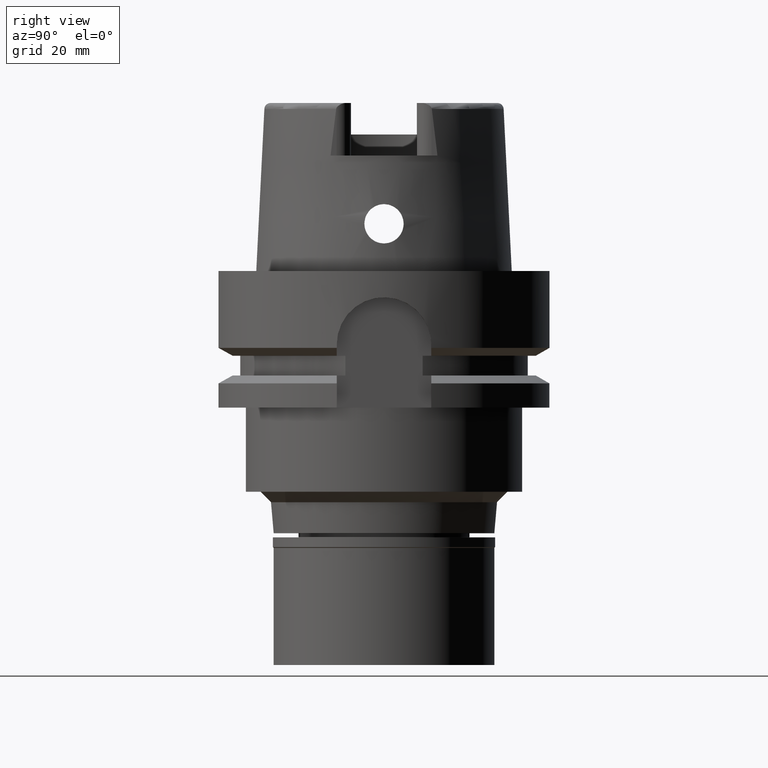
[diagram: clean part render]
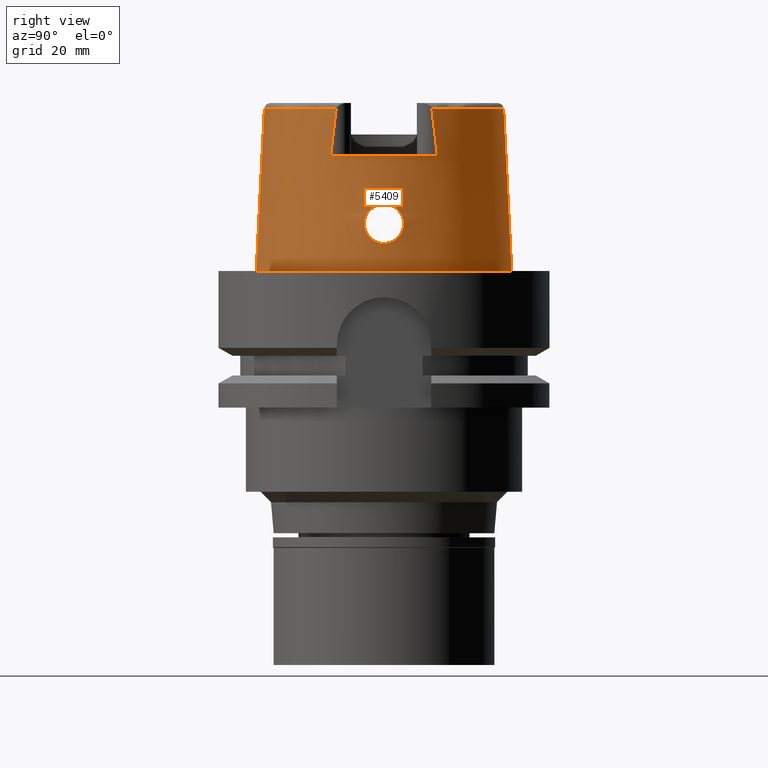
[diagram: same view with one face highlighted and labeled with its STEP entity id]
A machine part, right view. The second image highlights one B-rep face of the part: STEP entity #5409.
In plain terms, the highlighted conical surface has half-angle 2.862 deg.
Its self-contained STEP definition (entity closure, byte-faithful):
#14 = CARTESIAN_POINT ( 'NONE',  ( 23.56097393706681942, 3.025902903375624398, 11.21904465688760055 ) ) ;
#26 = CARTESIAN_POINT ( 'NONE',  ( 0.0000000000000000000, 0.0000000000000000000, 15.42996356139999925 ) ) ;
#50 = CARTESIAN_POINT ( 'NONE',  ( 23.81211834265714344, -2.876056312718741736, 6.592809062521236108 ) ) ;
#55 = DIRECTION ( 'NONE',  ( 0.0000000000000000000, -1.000000000000000000, 0.0000000000000000000 ) ) ;
#89 = CARTESIAN_POINT ( 'NONE',  ( 20.86994457043000040, 9.110917567833000774, 30.85992712280000205 ) ) ;
#98 = CARTESIAN_POINT ( 'NONE',  ( 23.99359462196727222, -1.456942030871878790, 5.544588945069683916 ) ) ;
#153 = CARTESIAN_POINT ( 'NONE',  ( 23.97828965818710856, -1.633483127063273255, 5.624001667398398574 ) ) ;
#163 = VECTOR ( 'NONE', #2156, 1000.000000000000000 ) ;
#212 = CARTESIAN_POINT ( 'NONE',  ( 23.79650205318756306, 2.969677808356737003, 6.697468027124751977 ) ) ;
#259 = CIRCLE ( 'NONE', #3077, 22.77198729362000051 ) ;
#317 = CARTESIAN_POINT ( 'NONE',  ( 23.53938479611692003, 3.476903592890194794, 10.40488538782464722 ) ) ;
#324 = CARTESIAN_POINT ( 'NONE',  ( 23.54002231872675566, -3.451693529973535401, 10.46572735612521576 ) ) ;
#352 = CARTESIAN_POINT ( 'NONE',  ( 23.62270114085325545, -3.665220644505638781, 8.197813718694982654 ) ) ;
#378 = CARTESIAN_POINT ( 'NONE',  ( 23.58262423634680260, 2.671064998426308623, 11.63209362314380613 ) ) ;
#384 = CARTESIAN_POINT ( 'NONE',  ( 23.64857754833197134, -1.427316427500459284, 12.46775257891087385 ) ) ;
#397 = EDGE_CURVE ( 'NONE', #4652, #3040, #3911, .T. ) ;
#409 = CARTESIAN_POINT ( 'NONE',  ( 23.55704744127657335, 3.750791013392718476, 9.225457498516988153 ) ) ;
#437 = CARTESIAN_POINT ( 'NONE',  ( 23.58145121590735016, 2.689938629073251430, 11.61282818498785652 ) ) ;
#442 = CARTESIAN_POINT ( 'NONE',  ( 23.54081473573868877, -3.424914551224363279, 10.52766104074157916 ) ) ;
#487 = CARTESIAN_POINT ( 'NONE',  ( 23.67751368057999883, 0.0000000000000000000, 12.75000000000000000 ) ) ;
#526 = CARTESIAN_POINT ( 'NONE',  ( 23.67875158223074550, -3.486570966158092144, 7.619279047603755295 ) ) ;
#545 = CARTESIAN_POINT ( 'NONE',  ( 20.87000000000000099, 9.459419187967647247, 28.07088142031913591 ) ) ;
#571 = ORIENTED_EDGE ( 'NONE', *, *, #3291, .F. ) ;
#587 = CARTESIAN_POINT ( 'NONE',  ( 23.72481455431118036, -3.304267991617185096, 7.225716315783373922 ) ) ;
#603 = CARTESIAN_POINT ( 'NONE',  ( 0.0000000000000000000, 0.0000000000000000000, -1.705302565823999926E-12 ) ) ;
#719 = CARTESIAN_POINT ( 'NONE',  ( 23.60613829532960395, 3.704475566804039666, 8.404539046098985722 ) ) ;
#730 = CARTESIAN_POINT ( 'NONE',  ( 20.87000000000000099, 10.16755860605000095, 22.00000000000000000 ) ) ;
#752 = CARTESIAN_POINT ( 'NONE',  ( 23.67751368058000239, -0.2261849445765579947, 12.75000000000000178 ) ) ;
#771 = EDGE_CURVE ( 'NONE', #4652, #1302, #4626, .T. ) ;
#775 = CARTESIAN_POINT ( 'NONE',  ( 23.57105491432628241, 2.858561901069452293, 11.42815467637543669 ) ) ;
#781 = CARTESIAN_POINT ( 'NONE',  ( 23.54216994027410337, -3.385217124010664325, 10.61496946164797883 ) ) ;
#806 = CARTESIAN_POINT ( 'NONE',  ( 23.62963982617640113, -1.849420927018827765, 12.26292078322306267 ) ) ;
#830 = CARTESIAN_POINT ( 'NONE',  ( 23.61537334687070455, 2.120206967978428114, 12.09310867072318807 ) ) ;
#846 = CARTESIAN_POINT ( 'NONE',  ( 20.87000000000000099, -9.811228181990475861, 25.12030646021867142 ) ) ;
#859 = CARTESIAN_POINT ( 'NONE',  ( 23.58213384584901817, 2.678952664373675407, 11.62407088645715447 ) ) ;
#864 = DIRECTION ( 'NONE',  ( 0.8989877876694615244, 0.4379736951246811505, 0.0000000000000000000 ) ) ;
#866 = CARTESIAN_POINT ( 'NONE',  ( 23.54860000739594739, -3.719469379752473159, 9.492452906602904861 ) ) ;
#870 = FACE_BOUND ( 'NONE', #3980, .T. ) ;
#895 = CARTESIAN_POINT ( 'NONE',  ( 23.84423449510489590, -2.690739985143590474, 6.388012785391639525 ) ) ;
#912 = AXIS2_PLACEMENT_3D ( 'NONE', #3039, #3826, #864 ) ;
#925 = CARTESIAN_POINT ( 'NONE',  ( 23.84677590770212774, -2.675526315981651138, 6.372427285870736924 ) ) ;
#932 = CARTESIAN_POINT ( 'NONE',  ( 20.87000527243999670, -9.110771420352000050, 30.85992623711999983 ) ) ;
#957 = CARTESIAN_POINT ( 'NONE',  ( 23.98509007005912608, -1.557381856860421632, 5.588571454807489403 ) ) ;
#959 = EDGE_CURVE ( 'NONE', #2384, #3885, #3646, .T. ) ;
#982 = CARTESIAN_POINT ( 'NONE',  ( 23.83528976135455935, -2.743773146917467098, 6.443467665228063801 ) ) ;
#1053 = CARTESIAN_POINT ( 'NONE',  ( 20.87000527243999670, -9.110771420352000050, 30.85992623711999983 ) ) ;
#1071 = CARTESIAN_POINT ( 'NONE',  ( 23.87287849170502696, 2.508908530147664795, 6.212686178633938461 ) ) ;
#1099 = CARTESIAN_POINT ( 'NONE',  ( 23.96281411356789803, 1.801536887985862867, 5.701936245124145763 ) ) ;
#1123 = ORIENTED_EDGE ( 'NONE', *, *, #959, .T. ) ;
#1130 = CARTESIAN_POINT ( 'NONE',  ( 23.99892183081600550, 1.390467575579733550, 5.517305325429570750 ) ) ;
#1153 = CARTESIAN_POINT ( 'NONE',  ( 23.82482953088663180, 2.812690198206222458, 6.507944060991925461 ) ) ;
#1179 = CARTESIAN_POINT ( 'NONE',  ( 23.88455075029623131, 2.429719352462580417, 6.142741650817558074 ) ) ;
#1223 = CARTESIAN_POINT ( 'NONE',  ( 23.65043793898882285, -1.379778864511815861, 12.48700197861594319 ) ) ;
#1230 = ORIENTED_EDGE ( 'NONE', *, *, #1947, .F. ) ;
#1250 = CARTESIAN_POINT ( 'NONE',  ( 23.57527764373855206, 2.789748443729621386, 11.50619361569903276 ) ) ;
#1256 = CARTESIAN_POINT ( 'NONE',  ( 23.65928277619455855, -1.127728027548423162, 12.57697906851297631 ) ) ;
#1276 = CARTESIAN_POINT ( 'NONE',  ( 23.54134771584749686, 3.395144912288543093, 10.60487850107475616 ) ) ;
#1284 = CARTESIAN_POINT ( 'NONE',  ( 23.64954775811062149, -1.402666035859550853, 12.47780041882622548 ) ) ;
#1302 = VERTEX_POINT ( 'NONE', #5264 ) ;
#1310 = CARTESIAN_POINT ( 'NONE',  ( 23.67751368057999528, 0.4549788484589344928, 12.74999999999999822 ) ) ;
#1321 = CARTESIAN_POINT ( 'NONE',  ( 23.58654186357497551, -2.609417199078821081, 11.69326521436242672 ) ) ;
#1347 = CARTESIAN_POINT ( 'NONE',  ( 23.64626530331659282, 1.484461710981089588, 12.44371459803452673 ) ) ;
#1352 = CARTESIAN_POINT ( 'NONE',  ( 23.62294777282069802, -1.980060669432733178, 12.18496609078765935 ) ) ;
#1403 = CARTESIAN_POINT ( 'NONE',  ( 23.67626437514265447, -3.495606887178084321, 7.642169836985746478 ) ) ;
#1411 = CARTESIAN_POINT ( 'NONE',  ( 20.87000000000000099, -10.16755860605000095, 22.00000000000000000 ) ) ;
#1434 = CARTESIAN_POINT ( 'NONE',  ( 23.99460956838357717, -1.444482579142679857, 5.539361949234068661 ) ) ;
#1457 = CARTESIAN_POINT ( 'NONE',  ( 23.77668904346040435, -3.064482073104850102, 6.835162334651972316 ) ) ;
#1484 = CARTESIAN_POINT ( 'NONE',  ( 23.65941753120850777, -3.554684953716767293, 7.802484017347683931 ) ) ;
#1514 = CARTESIAN_POINT ( 'NONE',  ( 24.03388906135126390, 0.8276443031840581277, 5.340460709605004297 ) ) ;
#1543 = CARTESIAN_POINT ( 'NONE',  ( 23.98208546553032861, 1.602188934204997306, 5.603774733748884351 ) ) ;
#1550 = ORIENTED_EDGE ( 'NONE', *, *, #2296, .T. ) ;
#1569 = CARTESIAN_POINT ( 'NONE',  ( 24.00062810426436855, 1.368485296584913469, 5.508555745081408439 ) ) ;
#1624 = CARTESIAN_POINT ( 'NONE',  ( 24.00451385766411150, 1.317098867169532506, 5.488663717027496780 ) ) ;
#1649 = CARTESIAN_POINT ( 'NONE',  ( 23.58242788266424128, 2.674222929817262617, 11.62888508467981907 ) ) ;
#1654 = CARTESIAN_POINT ( 'NONE',  ( 23.53987961263758066, -3.456910012722441916, 10.45338159864995831 ) ) ;
#1686 = CARTESIAN_POINT ( 'NONE',  ( 23.61896145368236688, -2.054616063814675098, 12.13705813474662953 ) ) ;
#1710 = CARTESIAN_POINT ( 'NONE',  ( 23.60997567110064921, 2.216910561411859604, 12.02465242982433935 ) ) ;
#1715 = CARTESIAN_POINT ( 'NONE',  ( 23.58513947237679531, -2.631378773968142237, 11.67181237770413382 ) ) ;
#1737 = CARTESIAN_POINT ( 'NONE',  ( 23.59428024546159719, 2.485372821356223838, 11.80877892373775140 ) ) ;
#1768 = CARTESIAN_POINT ( 'NONE',  ( 0.0000000000000000000, 0.0000000000000000000, 30.85992712280000205 ) ) ;
#1770 = CARTESIAN_POINT ( 'NONE',  ( 23.54104661985484626, 3.659578219871001181, 9.827624928941093074 ) ) ;
#1778 = CARTESIAN_POINT ( 'NONE',  ( 23.61173929926180293, -2.186798845419758219, 12.04885082764500837 ) ) ;
#1785 = DIRECTION ( 'NONE',  ( 0.0000000000000000000, 0.0000000000000000000, -1.000000000000000000 ) ) ;
#1799 = CARTESIAN_POINT ( 'NONE',  ( 20.87000000000000099, 10.16755860605000095, 22.00000000000000000 ) ) ;
#1800 = DIRECTION ( 'NONE',  ( 0.0006539142454758719572, 0.9999997861980568503, 0.0000000000000000000 ) ) ;
#1808 = CARTESIAN_POINT ( 'NONE',  ( 23.84602506928888843, -2.680028369110544872, 6.377023290669407096 ) ) ;
#1830 = CARTESIAN_POINT ( 'NONE',  ( 23.95825993753064154, -1.839319985160000837, 5.729995463670271683 ) ) ;
#1858 = CARTESIAN_POINT ( 'NONE',  ( 23.73188007111799891, -3.273675265078910712, 7.169718560288568909 ) ) ;
#1897 = LINE ( 'NONE', #4052, #2051 ) ;
#1923 = B_SPLINE_CURVE_WITH_KNOTS ( 'NONE', 3,
 ( #932, #2685, #846, #1411 ),
 .UNSPECIFIED., .F., .F.,
 ( 4, 4 ),
 ( 0.0000000000000000000, 1.000000000000000000 ),
 .UNSPECIFIED. ) ;
#1947 = EDGE_CURVE ( 'NONE', #3771, #3501, #4086, .T. ) ;
#1979 = CARTESIAN_POINT ( 'NONE',  ( 23.69990395557268670, 3.406268916110712919, 7.431302118594034667 ) ) ;
#1993 = ORIENTED_EDGE ( 'NONE', *, *, #771, .F. ) ;
#2003 = CARTESIAN_POINT ( 'NONE',  ( 23.92679428305575939, 2.112466261704413650, 5.899185394825984474 ) ) ;
#2027 = CARTESIAN_POINT ( 'NONE',  ( 23.85340144257088824, 2.634694293517353625, 6.331490366471819620 ) ) ;
#2051 = VECTOR ( 'NONE', #4967, 1000.000000000000000 ) ;
#2055 = CARTESIAN_POINT ( 'NONE',  ( 23.57218598633851414, 3.749467715772272225, 8.930683915611526302 ) ) ;
#2075 = CARTESIAN_POINT ( 'NONE',  ( 0.0000000000000000000, 22.77198729362000051, 30.85992712280000205 ) ) ;
#2081 = CARTESIAN_POINT ( 'NONE',  ( 23.53872169531113556, 3.511245085724293613, 10.31733588003207203 ) ) ;
#2086 = CARTESIAN_POINT ( 'NONE',  ( 23.53725245935206800, -3.558478069581667569, 10.20941616451936618 ) ) ;
#2117 = CARTESIAN_POINT ( 'NONE',  ( 23.63320572769504579, -3.636756252614861129, 8.076649341547746275 ) ) ;
#2153 = CARTESIAN_POINT ( 'NONE',  ( 23.64894955656047415, -1.417920874611176218, 12.47160887121284389 ) ) ;
#2156 = DIRECTION ( 'NONE',  ( 0.0000000000000000000, -0.04993926899645239476, -0.9987522562738468945 ) ) ;
#2175 = CARTESIAN_POINT ( 'NONE',  ( 23.54586755900459494, 3.296087949718378152, 10.80500472231160813 ) ) ;
#2178 = ORIENTED_EDGE ( 'NONE', *, *, #397, .T. ) ;
#2181 = CARTESIAN_POINT ( 'NONE',  ( 23.56125528712512462, -3.008819783111365442, 11.25145315638445176 ) ) ;
#2200 = CARTESIAN_POINT ( 'NONE',  ( 23.58281893491474790, 2.667934449888074155, 11.63526578802163236 ) ) ;
#2207 = CARTESIAN_POINT ( 'NONE',  ( 23.66475204751018779, -0.9447017735886305001, 12.63128594326740561 ) ) ;
#2286 = CARTESIAN_POINT ( 'NONE',  ( 23.68143317685165172, -3.476760609705946248, 7.594767764855699710 ) ) ;
#2296 = EDGE_CURVE ( 'NONE', #4365, #1302, #259, .T. ) ;
#2348 = CARTESIAN_POINT ( 'NONE',  ( 23.69267901451155467, -3.435313321395989217, 7.492728561915781960 ) ) ;
#2378 = CARTESIAN_POINT ( 'NONE',  ( 0.0000000000000000000, 0.0000000000000000000, 30.85992712280000205 ) ) ;
#2384 = VERTEX_POINT ( 'NONE', #3382 ) ;
#2397 = CARTESIAN_POINT ( 'NONE',  ( 24.05252611746999492, 0.2325077732512698669, 5.249999999999997335 ) ) ;
#2448 = CARTESIAN_POINT ( 'NONE',  ( 24.04786685344030417, 0.4701860645733111355, 5.271687150086250107 ) ) ;
#2474 = CARTESIAN_POINT ( 'NONE',  ( 23.59734791859323977, 3.721558551679986948, 8.524150666757527972 ) ) ;
#2517 = CARTESIAN_POINT ( 'NONE',  ( 23.54024401204432237, -3.443801768193616830, 10.48426619355131884 ) ) ;
#2535 = CARTESIAN_POINT ( 'NONE',  ( 23.61623302315700101, 2.104609191704185811, 12.10372912159167846 ) ) ;
#2536 = EDGE_CURVE ( 'NONE', #3825, #2384, #5141, .T. ) ;
#2541 = CARTESIAN_POINT ( 'NONE',  ( 23.57901186305366537, -3.750878233297750164, 8.791289893189423665 ) ) ;
#2570 = CARTESIAN_POINT ( 'NONE',  ( 23.60614818650349278, -2.285520253570488602, 11.97556343069305917 ) ) ;
#2591 = CARTESIAN_POINT ( 'NONE',  ( 23.61647505348881282, 2.100209348168422974, 12.10670661166016693 ) ) ;
#2597 = CARTESIAN_POINT ( 'NONE',  ( 23.59775145261996698, -2.427854306064669121, 11.85863492044943257 ) ) ;
#2617 = CARTESIAN_POINT ( 'NONE',  ( 23.53831510373791147, 3.548815163238392856, 10.21459230120443529 ) ) ;
#2621 = CARTESIAN_POINT ( 'NONE',  ( 23.55025723064434473, -3.208610953481989103, 10.94478795755587264 ) ) ;
#2648 = CARTESIAN_POINT ( 'NONE',  ( 23.68041738839398036, -3.480489754050122730, 7.604020586686651484 ) ) ;
#2677 = CARTESIAN_POINT ( 'NONE',  ( 23.84154942129693211, -2.706756815061968524, 6.404546342300083239 ) ) ;
#2685 = CARTESIAN_POINT ( 'NONE',  ( 20.87000000000000099, -9.458996941411141890, 28.07361520592533921 ) ) ;
#2703 = CARTESIAN_POINT ( 'NONE',  ( 23.98838874265597454, -1.519505503694565718, 5.571455656793506073 ) ) ;
#2760 = CARTESIAN_POINT ( 'NONE',  ( 23.79082044477604541, -2.991925713933301090, 6.735943239240334890 ) ) ;
#2813 = CARTESIAN_POINT ( 'NONE',  ( 23.85979825619904915, 2.594346529541589508, 6.292151206332174063 ) ) ;
#2836 = CARTESIAN_POINT ( 'NONE',  ( 23.71988489817474388, 3.324329548118549305, 7.263586677089836741 ) ) ;
#2890 = CARTESIAN_POINT ( 'NONE',  ( 23.65915795014009504, 3.560612941875640036, 7.793217739937138511 ) ) ;
#2934 = AXIS2_PLACEMENT_3D ( 'NONE', #26, #1785, #55 ) ;
#2957 = CARTESIAN_POINT ( 'NONE',  ( 23.58452074418460498, -2.641016600490864619, 11.66229707110452907 ) ) ;
#2968 = ORIENTED_EDGE ( 'NONE', *, *, #5008, .F. ) ;
#2976 = CARTESIAN_POINT ( 'NONE',  ( 23.61418574686207705, 2.141679200080568446, 12.07832650846694911 ) ) ;
#2981 = ORIENTED_EDGE ( 'NONE', *, *, #2536, .T. ) ;
#2982 = CARTESIAN_POINT ( 'NONE',  ( 23.64015963483398153, -1.629139294252513803, 12.37988382987109759 ) ) ;
#3001 = CARTESIAN_POINT ( 'NONE',  ( 23.64450024588828825, 1.526911745181640079, 12.42524279566442580 ) ) ;
#3007 = CARTESIAN_POINT ( 'NONE',  ( 23.65632025423192175, -1.219400787780500650, 12.54724333172582185 ) ) ;
#3033 = CARTESIAN_POINT ( 'NONE',  ( 23.59777957821653516, 2.427685926216071266, 11.85959513810984411 ) ) ;
#3039 = CARTESIAN_POINT ( 'NONE',  ( 0.0000000000000000000, 0.0000000000000000000, 22.00000000000000000 ) ) ;
#3040 = VERTEX_POINT ( 'NONE', #3829 ) ;
#3041 = CARTESIAN_POINT ( 'NONE',  ( 23.67508289332860016, -0.4619877724869187463, 12.72949583038829324 ) ) ;
#3061 = CARTESIAN_POINT ( 'NONE',  ( 23.67751368057999883, 0.0000000000000000000, 12.75000000000000000 ) ) ;
#3066 = CARTESIAN_POINT ( 'NONE',  ( 23.57119312618646489, -2.847147338571896391, 11.45593424703520746 ) ) ;
#3077 = AXIS2_PLACEMENT_3D ( 'NONE', #1768, #3090, #1800 ) ;
#3090 = DIRECTION ( 'NONE',  ( 0.0000000000000000000, 0.0000000000000000000, -1.000000000000000000 ) ) ;
#3133 = CARTESIAN_POINT ( 'NONE',  ( 23.70468201863554114, -3.388736256390071588, 7.389396139753737991 ) ) ;
#3162 = CARTESIAN_POINT ( 'NONE',  ( 23.99501896589982408, -1.439429832400009879, 5.537254625799112873 ) ) ;
#3188 = CARTESIAN_POINT ( 'NONE',  ( 23.75858778235799562, -3.151279374226889196, 6.967263993404180233 ) ) ;
#3224 = DIRECTION ( 'NONE',  ( 0.0000000000000000000, 0.0000000000000000000, -1.000000000000000000 ) ) ;
#3244 = CARTESIAN_POINT ( 'NONE',  ( 24.01190315921120444, 1.213978346600832925, 5.450969052614299315 ) ) ;
#3267 = CARTESIAN_POINT ( 'NONE',  ( 23.58021433751559570, 3.744761166252446039, 8.787705626366964395 ) ) ;
#3291 = EDGE_CURVE ( 'NONE', #3501, #3771, #4563, .T. ) ;
#3297 = CARTESIAN_POINT ( 'NONE',  ( 23.69333236356260031, 3.431995816999582782, 7.488416167033077997 ) ) ;
#3324 = CARTESIAN_POINT ( 'NONE',  ( 23.70981457690216843, 3.366709134817428062, 7.346345016119436799 ) ) ;
#3347 = CARTESIAN_POINT ( 'NONE',  ( 23.89203588925001753, 2.376747523073647450, 6.098601035006788962 ) ) ;
#3378 = CARTESIAN_POINT ( 'NONE',  ( 23.56491142246879633, -3.749377038905372661, 9.074540619714735357 ) ) ;
#3382 = CARTESIAN_POINT ( 'NONE',  ( 0.0000000000000000000, -24.31503482328999866, -9.841016890276999833E-13 ) ) ;
#3404 = CARTESIAN_POINT ( 'NONE',  ( 23.61588834860254948, 2.110866752455811568, 12.09947670799421537 ) ) ;
#3430 = CARTESIAN_POINT ( 'NONE',  ( 23.57745220315040768, 2.754458852698585147, 11.54512315306854298 ) ) ;
#3455 = CARTESIAN_POINT ( 'NONE',  ( 23.62924071359791256, 1.859270632639829168, 12.25899675271145917 ) ) ;
#3465 = CARTESIAN_POINT ( 'NONE',  ( 23.56217305135234241, -3.747723172085159593, 9.133998168921156235 ) ) ;
#3487 = CARTESIAN_POINT ( 'NONE',  ( 23.61186682964055095, 2.183347465136680210, 12.04908828267561915 ) ) ;
#3501 = VERTEX_POINT ( 'NONE', #4688 ) ;
#3523 = CARTESIAN_POINT ( 'NONE',  ( 24.05252611746999847, 0.0000000000000000000, 5.250000000000000000 ) ) ;
#3550 = CARTESIAN_POINT ( 'NONE',  ( 23.94702667713243471, -1.943809505330724718, 5.790677966014908584 ) ) ;
#3555 = FACE_OUTER_BOUND ( 'NONE', #4800, .T. ) ;
#3581 = CARTESIAN_POINT ( 'NONE',  ( 23.91007782908453194, -2.258093131450487512, 5.995655037609489924 ) ) ;
#3605 = CARTESIAN_POINT ( 'NONE',  ( 23.67054140703463361, -3.516091767601535967, 7.695598450630765086 ) ) ;
#3646 = CIRCLE ( 'NONE', #5558, 24.31503482328999866 ) ;
#3673 = CARTESIAN_POINT ( 'NONE',  ( 0.0000000000000000000, -22.77198729362000051, 30.85992712280000205 ) ) ;
#3687 = CARTESIAN_POINT ( 'NONE',  ( 23.58567364867680283, 3.738477241609778901, 8.700382620083255247 ) ) ;
#3713 = CARTESIAN_POINT ( 'NONE',  ( 23.74023847397739928, 3.236048594038583470, 7.101136606567798992 ) ) ;
#3738 = CARTESIAN_POINT ( 'NONE',  ( 23.75409143552246150, 3.172498941785660165, 6.996931002871173533 ) ) ;
#3767 = CARTESIAN_POINT ( 'NONE',  ( 23.57076308268172582, 3.749876571315780893, 8.957424863624392941 ) ) ;
#3771 = VERTEX_POINT ( 'NONE', #487 ) ;
#3791 = CARTESIAN_POINT ( 'NONE',  ( 23.63708328607956943, 1.694368620543752924, 12.34596424930270686 ) ) ;
#3799 = CARTESIAN_POINT ( 'NONE',  ( 23.55823356425074522, -3.744176944018108966, 9.223317169989657671 ) ) ;
#3825 = VERTEX_POINT ( 'NONE', #3673 ) ;
#3826 = DIRECTION ( 'NONE',  ( 0.0000000000000000000, 0.0000000000000000000, -1.000000000000000000 ) ) ;
#3828 = CARTESIAN_POINT ( 'NONE',  ( 23.65043488402597660, -3.583758024085187621, 7.894017837099347901 ) ) ;
#3829 = CARTESIAN_POINT ( 'NONE',  ( 20.87000000000000099, -10.16755860605000095, 22.00000000000000000 ) ) ;
#3853 = CARTESIAN_POINT ( 'NONE',  ( 23.53947527351185087, 3.630450389133363931, 9.947473486138735055 ) ) ;
#3860 = CARTESIAN_POINT ( 'NONE',  ( 23.66779053157442902, -0.8231180426002631112, 12.66060031287884691 ) ) ;
#3881 = CARTESIAN_POINT ( 'NONE',  ( 23.55669178490559190, 3.099453668576203746, 11.11443169937243169 ) ) ;
#3885 = VERTEX_POINT ( 'NONE', #4117 ) ;
#3886 = CARTESIAN_POINT ( 'NONE',  ( 23.53982241827532818, -3.459046565155599051, 10.44829497625318915 ) ) ;
#3907 = CARTESIAN_POINT ( 'NONE',  ( 23.60632200041122886, 2.281260442116129550, 11.97677843135882547 ) ) ;
#3911 = CIRCLE ( 'NONE', #912, 23.21499834174998966 ) ;
#3965 = ORIENTED_EDGE ( 'NONE', *, *, #5344, .F. ) ;
#3980 = EDGE_LOOP ( 'NONE', ( #571, #1230 ) ) ;
#3991 = CARTESIAN_POINT ( 'NONE',  ( 23.76059799827205765, -3.141708946238885414, 6.952503415372450313 ) ) ;
#4038 = DIRECTION ( 'NONE',  ( 0.0000000000000000000, 0.0000000000000000000, 1.000000000000000000 ) ) ;
#4045 = CARTESIAN_POINT ( 'NONE',  ( 23.75558908371731093, -3.165496117163713041, 6.989361290145930994 ) ) ;
#4052 = CARTESIAN_POINT ( 'NONE',  ( 0.0000000000000000000, 22.77198729362000051, 30.85992712280000205 ) ) ;
#4086 = B_SPLINE_CURVE_WITH_KNOTS ( 'NONE', 3,
 ( #5195, #752, #3041, #3860, #2207, #1256, #3007, #5567, #1223, #1284, #2153, #384, #4341, #2982, #4701, #806, #4219, #1352, #5536, #1686, #4752, #5600, #1778, #2570, #2597, #4313, #5229, #1321, #1715, #2957, #3066, #2181, #2621, #5103, #4727, #781, #442, #2517, #324, #1654, #3886, #2086, #4279, #5164, #866, #5627, #3799, #3465, #3378, #4675, #2541, #4245, #352, #2117, #3828, #1484, #3605, #1403, #526, #2648, #2286, #2348, #3133, #587, #1858, #5367, #4865, #4045, #3188, #3991, #4840, #1457, #2760, #50, #5281, #982, #2677, #895, #1808, #925, #4396, #3581, #3550, #1830, #5317, #153, #957, #2703, #4422, #98, #1434, #3162, #4368, #4778, #3523 ),
 .UNSPECIFIED., .F., .F.,
 ( 4, 2, 2, 1, 1, 1, 2, 2, 2, 2, 1, 1, 2, 2, 2, 1, 1, 2, 2, 2, 2, 1, 1, 1, 2, 2, 2, 2, 1, 2, 2, 2, 2, 1, 1, 1, 2, 2, 2, 2, 1, 1, 2, 2, 2, 1, 1, 1, 2, 2, 2, 2, 2, 1, 1, 2, 2, 4 ),
 ( 0.0000000000000000000, 0.06250000000000104083, 0.09375000000000149880, 0.1093750000000018041, 0.1171875000000019568, 0.1210937500000021094, 0.1230468750000021233, 0.1250000000000021372, 0.1562500000000013323, 0.1718750000000008882, 0.1796875000000006939, 0.1835937500000004996, 0.1855468750000004441, 0.1875000000000003886, 0.2187499999999995837, 0.2343749999999992228, 0.2421874999999990563, 0.2460937499999990286, 0.2499999999999989730, 0.3125000000000018874, 0.3437500000000031641, 0.3593750000000038858, 0.3671875000000044409, 0.3710937500000044964, 0.3730468750000045519, 0.3750000000000045519, 0.4375000000000078826, 0.4687500000000095479, 0.4843750000000105471, 0.4921875000000108802, 0.5000000000000112133, 0.5625000000000137668, 0.5937500000000148770, 0.6093750000000154321, 0.6171875000000158762, 0.6210937500000160982, 0.6230468750000160982, 0.6250000000000162093, 0.6562500000000163203, 0.6718750000000164313, 0.6796875000000165423, 0.6835937500000166533, 0.6855468750000166533, 0.6875000000000166533, 0.7187500000000162093, 0.7343750000000158762, 0.7421875000000156541, 0.7460937500000155431, 0.7480468750000154321, 0.7500000000000154321, 0.8125000000000126565, 0.8437500000000112133, 0.8593750000000103251, 0.8671875000000097700, 0.8710937500000095479, 0.8730468750000094369, 0.8750000000000093259, 1.000000000000000000 ),
 .UNSPECIFIED. ) ;
#4101 = CARTESIAN_POINT ( 'NONE',  ( 24.02806498131415935, 0.9469375291923967097, 5.369413878627634418 ) ) ;
#4117 = CARTESIAN_POINT ( 'NONE',  ( 0.0000000000000000000, 24.31503482328999866, -1.705302565823999926E-12 ) ) ;
#4154 = CARTESIAN_POINT ( 'NONE',  ( 23.86693122486930463, 2.548435404066336840, 6.248591531738059146 ) ) ;
#4183 = CARTESIAN_POINT ( 'NONE',  ( 23.85669959304853194, 2.613969601525201192, 6.311181230535146014 ) ) ;
#4214 = CARTESIAN_POINT ( 'NONE',  ( 23.60405774847215454, 2.320459480152408549, 11.94619731663258833 ) ) ;
#4219 = CARTESIAN_POINT ( 'NONE',  ( 23.62522336515583277, -1.936152120870428206, 12.21168840574081749 ) ) ;
#4232 = ORIENTED_EDGE ( 'NONE', *, *, #5476, .T. ) ;
#4239 = CARTESIAN_POINT ( 'NONE',  ( 23.64699592553362351, 1.466575645110494763, 12.45133268426482864 ) ) ;
#4245 = CARTESIAN_POINT ( 'NONE',  ( 23.59413193246432172, -3.731734034316950943, 8.557233799372916394 ) ) ;
#4270 = CARTESIAN_POINT ( 'NONE',  ( 23.64288401565503506, 1.564498854582077492, 12.40817256935148905 ) ) ;
#4279 = CARTESIAN_POINT ( 'NONE',  ( 23.53834586219749525, -3.630224694469734725, 9.971336942529569924 ) ) ;
#4307 = CARTESIAN_POINT ( 'NONE',  ( 23.53907345106636839, 3.491450836612827402, 10.36846676815076762 ) ) ;
#4313 = CARTESIAN_POINT ( 'NONE',  ( 23.59355056949168983, -2.497585120386627722, 11.79842241576240625 ) ) ;
#4335 = CARTESIAN_POINT ( 'NONE',  ( 23.58009977986587202, 2.711710673494696522, 11.59030577860656841 ) ) ;
#4341 = CARTESIAN_POINT ( 'NONE',  ( 23.64461119726453475, -1.526836784571597105, 12.42659355902207885 ) ) ;
#4365 = VERTEX_POINT ( 'NONE', #2075 ) ;
#4368 = CARTESIAN_POINT ( 'NONE',  ( 24.03355468602416067, -0.9597078840257600163, 5.339035863619514544 ) ) ;
#4396 = CARTESIAN_POINT ( 'NONE',  ( 23.88111317458156435, -2.468944463606602913, 6.163072923791399482 ) ) ;
#4422 = CARTESIAN_POINT ( 'NONE',  ( 23.99205951067540710, -1.475657377404372195, 5.552499809540077713 ) ) ;
#4528 = CARTESIAN_POINT ( 'NONE',  ( 23.85462455615317268, 2.627038777398046143, 6.323948671125442011 ) ) ;
#4553 = CARTESIAN_POINT ( 'NONE',  ( 23.91360220579031193, 2.218016892957249908, 5.973272388773988695 ) ) ;
#4563 = B_SPLINE_CURVE_WITH_KNOTS ( 'NONE', 3,
 ( #5015, #2397, #2448, #1514, #4101, #5429, #3244, #1624, #1569, #1130, #4956, #5067, #1543, #1099, #2003, #4553, #3347, #1179, #1071, #4154, #2813, #4183, #4528, #2027, #1153, #212, #3738, #3713, #2836, #3324, #1979, #3297, #5042, #2890, #4606, #719, #2474, #3687, #3267, #4985, #2055, #3767, #409, #5097, #1770, #3853, #4746, #2617, #2081, #4307, #4670, #317, #5133, #1276, #2175, #3881, #14, #4720, #775, #1250, #3430, #4335, #437, #859, #1649, #378, #2200, #5622, #5186, #1737, #3033, #4214, #3907, #1710, #3487, #2976, #830, #3404, #2535, #2591, #5595, #3455, #3791, #5222, #4270, #3001, #1347, #4239, #5529, #4694, #5158, #1310, #3061 ),
 .UNSPECIFIED., .F., .F.,
 ( 4, 2, 2, 1, 1, 1, 2, 2, 2, 2, 2, 1, 1, 2, 2, 2, 2, 1, 2, 2, 2, 2, 1, 2, 2, 2, 2, 1, 1, 1, 2, 2, 2, 2, 2, 1, 1, 1, 1, 2, 2, 2, 2, 2, 1, 1, 1, 2, 2, 2, 2, 1, 1, 2, 2, 4 ),
 ( 0.0000000000000000000, 0.06250000000025687785, 0.09375000000038534453, 0.1093750000004495987, 0.1171875000004816841, 0.1210937500004976436, 0.1230468750005056650, 0.1250000000005136724, 0.1875000000007716328, 0.2187500000009005574, 0.2343750000009650059, 0.2421875000009972856, 0.2460937500010134393, 0.2480468750010215440, 0.2500000000010296208, 0.3125000000012883028, 0.3437500000014175883, 0.3593750000014822588, 0.3671875000015146218, 0.3750000000015469293, 0.4375000000018059443, 0.4687500000019351742, 0.4843750000019995672, 0.4921875000020317636, 0.5000000000020639046, 0.5625000000023238078, 0.5937500000024534819, 0.6093750000025185409, 0.6171875000025512925, 0.6210937500025679459, 0.6230468750025761615, 0.6250000000025844882, 0.6875000000028479441, 0.7187500000029797276, 0.7343750000030456748, 0.7421875000030786484, 0.7460937500030950797, 0.7480468750031034064, 0.7490234375031074032, 0.7495117187531092906, 0.7500000000031111780, 0.7812500000027216007, 0.7968750000025265345, 0.8046875000024290570, 0.8085937500023803182, 0.8105468750023560043, 0.8115234375023439028, 0.8120117187523377966, 0.8125000000023316904, 0.8437500000019426682, 0.8593750000017480462, 0.8671875000016507906, 0.8710937500016022739, 0.8730468750015779600, 0.8750000000015536461, 1.000000000000000000 ),
 .UNSPECIFIED. ) ;
#4606 = CARTESIAN_POINT ( 'NONE',  ( 23.63553201591491160, 3.633773678899822279, 8.041333873963367296 ) ) ;
#4626 = B_SPLINE_CURVE_WITH_KNOTS ( 'NONE', 3,
 ( #1799, #4801, #545, #89 ),
 .UNSPECIFIED., .F., .F.,
 ( 4, 4 ),
 ( 0.0000000000000000000, 1.000000000000000000 ),
 .UNSPECIFIED. ) ;
#4652 = VERTEX_POINT ( 'NONE', #730 ) ;
#4670 = CARTESIAN_POINT ( 'NONE',  ( 23.53925601638330889, 3.482751323585687064, 10.39032541702944812 ) ) ;
#4675 = CARTESIAN_POINT ( 'NONE',  ( 23.56641861317137909, -3.749855453954713980, 9.043216062237698694 ) ) ;
#4688 = CARTESIAN_POINT ( 'NONE',  ( 24.05252611746999847, 0.0000000000000000000, 5.250000000000000000 ) ) ;
#4694 = CARTESIAN_POINT ( 'NONE',  ( 23.64764204270829495, 1.450648325410683448, 12.45806140163700171 ) ) ;
#4701 = CARTESIAN_POINT ( 'NONE',  ( 23.63240450199051423, -1.793051319550514666, 12.29412649291638182 ) ) ;
#4720 = CARTESIAN_POINT ( 'NONE',  ( 23.56840828059999282, 2.902082455674666051, 11.37589021483419849 ) ) ;
#4727 = CARTESIAN_POINT ( 'NONE',  ( 23.54369798498452226, -3.347789649561000225, 10.69058414493920139 ) ) ;
#4746 = CARTESIAN_POINT ( 'NONE',  ( 23.53847560228181734, 3.577559143151381793, 10.12579509058157079 ) ) ;
#4752 = CARTESIAN_POINT ( 'NONE',  ( 23.61814678804993051, -2.069641888855733747, 12.12716538775277542 ) ) ;
#4778 = CARTESIAN_POINT ( 'NONE',  ( 24.05252611747000557, -0.4684986831706722810, 5.250000000000000000 ) ) ;
#4800 = EDGE_LOOP ( 'NONE', ( #3965, #4232, #2981, #1123, #2968, #1550, #1993, #2178 ) ) ;
#4801 = CARTESIAN_POINT ( 'NONE',  ( 20.87000000000000099, 9.811659030624156230, 25.11757557699920085 ) ) ;
#4840 = CARTESIAN_POINT ( 'NONE',  ( 23.76174582666375201, -3.136218888568814922, 6.944108475645502487 ) ) ;
#4865 = CARTESIAN_POINT ( 'NONE',  ( 23.74870849683503593, -3.197707649979678379, 7.040603927829801378 ) ) ;
#4915 = DIRECTION ( 'NONE',  ( 0.0000000000000000000, -1.000000000000000000, 0.0000000000000000000 ) ) ;
#4939 = VERTEX_POINT ( 'NONE', #1053 ) ;
#4956 = CARTESIAN_POINT ( 'NONE',  ( 23.99777521505870226, 1.405113072296888976, 5.523188309804481833 ) ) ;
#4967 = DIRECTION ( 'NONE',  ( 0.0000000000000000000, 0.04993926899645239476, -0.9987522562738468945 ) ) ;
#4985 = CARTESIAN_POINT ( 'NONE',  ( 23.57532176204994201, 3.747980324712478772, 8.873681526522691598 ) ) ;
#5008 = EDGE_CURVE ( 'NONE', #4365, #3885, #1897, .T. ) ;
#5015 = CARTESIAN_POINT ( 'NONE',  ( 24.05252611746999847, 0.0000000000000000000, 5.250000000000000000 ) ) ;
#5042 = CARTESIAN_POINT ( 'NONE',  ( 23.69027101170775040, 3.443759803186581703, 7.515365329585153908 ) ) ;
#5067 = CARTESIAN_POINT ( 'NONE',  ( 23.99706899547578587, 1.414042960996372056, 5.526814077936188951 ) ) ;
#5097 = CARTESIAN_POINT ( 'NONE',  ( 23.54847535545275150, 3.728837560095095149, 9.467090496435046632 ) ) ;
#5103 = CARTESIAN_POINT ( 'NONE',  ( 23.54724266216929962, -3.268129760513797777, 10.84252788954585434 ) ) ;
#5133 = CARTESIAN_POINT ( 'NONE',  ( 23.53946719464294546, 3.473353745988141839, 10.41363112527076495 ) ) ;
#5141 = LINE ( 'NONE', #5201, #163 ) ;
#5158 = CARTESIAN_POINT ( 'NONE',  ( 23.66765911963262781, 0.9514912869014912067, 12.66615542901272740 ) ) ;
#5164 = CARTESIAN_POINT ( 'NONE',  ( 23.54536419280402271, -3.701667229080881416, 9.612406255857839810 ) ) ;
#5186 = CARTESIAN_POINT ( 'NONE',  ( 23.58584058944327921, 2.622139005000138745, 11.68368318784749782 ) ) ;
#5195 = CARTESIAN_POINT ( 'NONE',  ( 23.67751368057999883, 0.0000000000000000000, 12.75000000000000000 ) ) ;
#5201 = CARTESIAN_POINT ( 'NONE',  ( 0.0000000000000000000, -22.77198729362000051, 30.85992712280000205 ) ) ;
#5222 = CARTESIAN_POINT ( 'NONE',  ( 23.63951379003364295, 1.641198480632049650, 12.37226263227602985 ) ) ;
#5229 = CARTESIAN_POINT ( 'NONE',  ( 23.58864513584896727, -2.576277253761824149, 11.72524220108190995 ) ) ;
#5264 = CARTESIAN_POINT ( 'NONE',  ( 20.86994457043000040, 9.110917567833000774, 30.85992712280000205 ) ) ;
#5281 = CARTESIAN_POINT ( 'NONE',  ( 23.82279249057461001, -2.816364005190575170, 6.522664796559041633 ) ) ;
#5299 = AXIS2_PLACEMENT_3D ( 'NONE', #2378, #3224, #5435 ) ;
#5317 = CARTESIAN_POINT ( 'NONE',  ( 23.97348529470131240, -1.684682915086769484, 5.649220181141225261 ) ) ;
#5344 = EDGE_CURVE ( 'NONE', #4939, #3040, #1923, .T. ) ;
#5367 = CARTESIAN_POINT ( 'NONE',  ( 23.74301035370062252, -3.223709656039121185, 7.083938668519314419 ) ) ;
#5390 = CONICAL_SURFACE ( 'NONE', #2934, 23.54351105844999736, 0.04996004983832824653 ) ;
#5395 = CIRCLE ( 'NONE', #5299, 22.77198729362001117 ) ;
#5409 = ADVANCED_FACE ( 'NONE', ( #3555, #870 ), #5390, .T. ) ;
#5429 = CARTESIAN_POINT ( 'NONE',  ( 24.01758163724737472, 1.125095919612451700, 5.422221955054356002 ) ) ;
#5435 = DIRECTION ( 'NONE',  ( 0.9164775804687985694, -0.4000860463675992573, 0.0000000000000000000 ) ) ;
#5476 = EDGE_CURVE ( 'NONE', #4939, #3825, #5395, .T. ) ;
#5529 = CARTESIAN_POINT ( 'NONE',  ( 23.64747726679685158, 1.454720482100463785, 12.45634629909436342 ) ) ;
#5536 = CARTESIAN_POINT ( 'NONE',  ( 23.62017503190288181, -2.032131432809887617, 12.15174538355684852 ) ) ;
#5558 = AXIS2_PLACEMENT_3D ( 'NONE', #603, #4038, #4915 ) ;
#5567 = CARTESIAN_POINT ( 'NONE',  ( 23.65246517757543288, -1.326345965929029758, 12.50787410927183529 ) ) ;
#5595 = CARTESIAN_POINT ( 'NONE',  ( 23.62327758445090709, 1.976455621438489407, 12.19025673622546790 ) ) ;
#5600 = CARTESIAN_POINT ( 'NONE',  ( 23.61767272737237633, -2.078341258380878909, 12.12138695488841655 ) ) ;
#5622 = CARTESIAN_POINT ( 'NONE',  ( 23.58295860842632408, 2.665688829963665629, 11.63753918666334997 ) ) ;
#5627 = CARTESIAN_POINT ( 'NONE',  ( 23.55479828586839020, -3.737401946164735644, 9.312957306734491070 ) ) ;